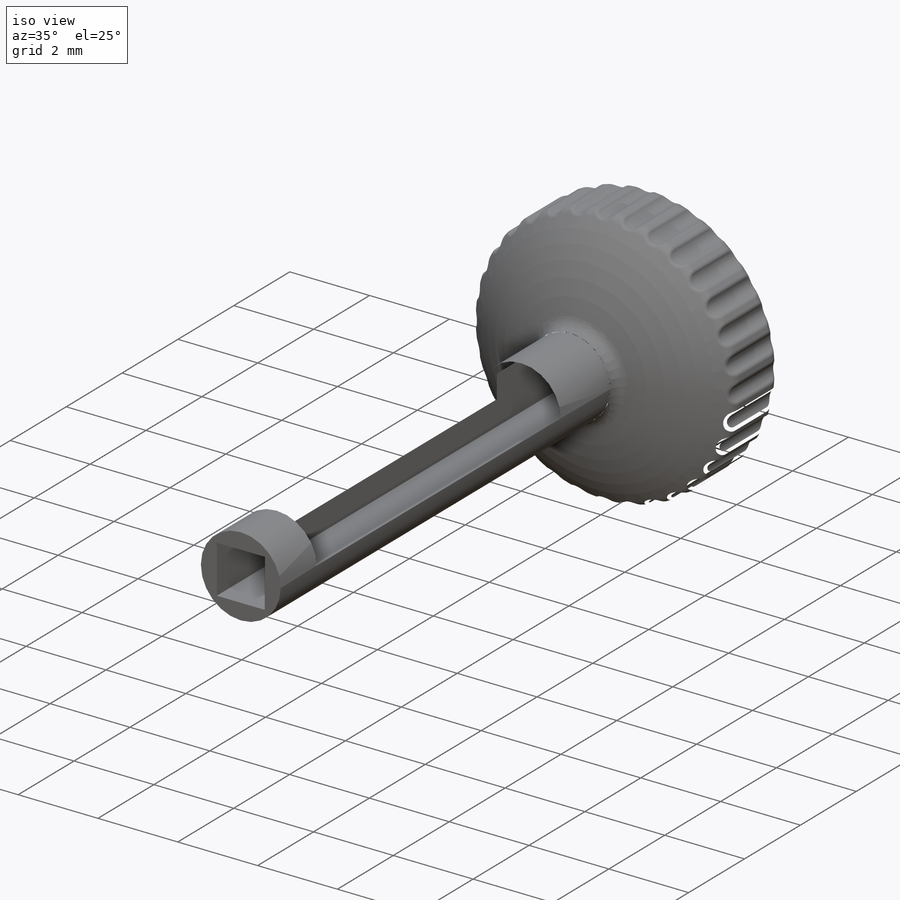
[diagram: iso view]
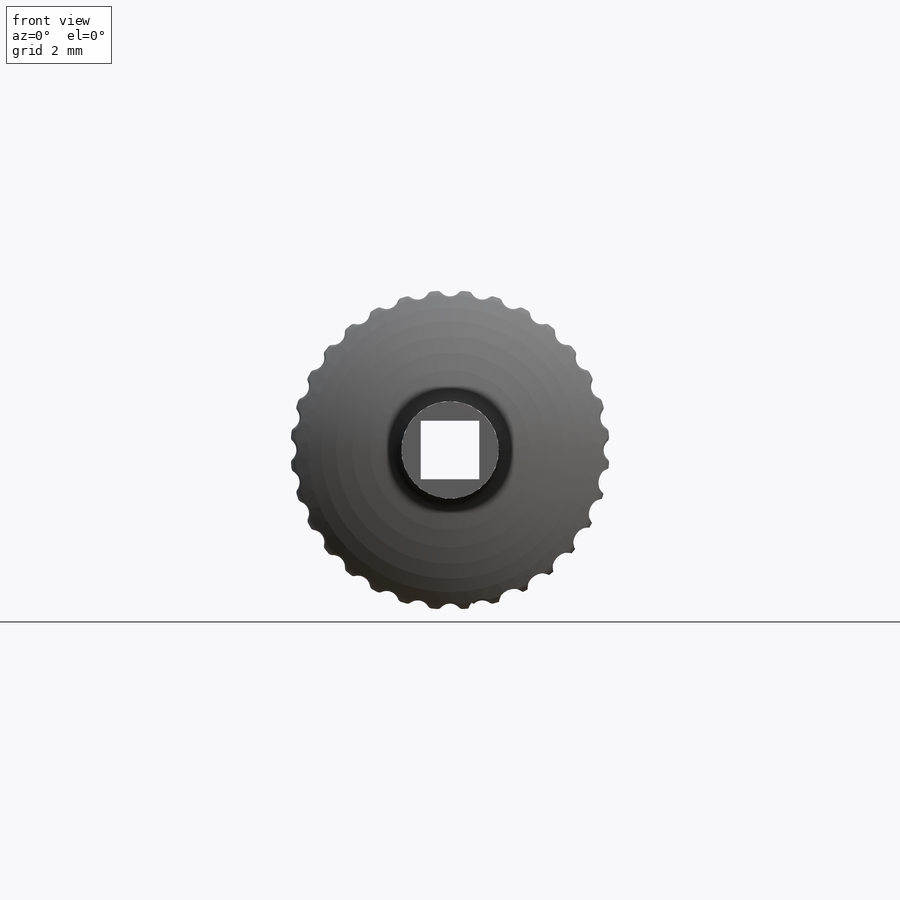
[diagram: front view]
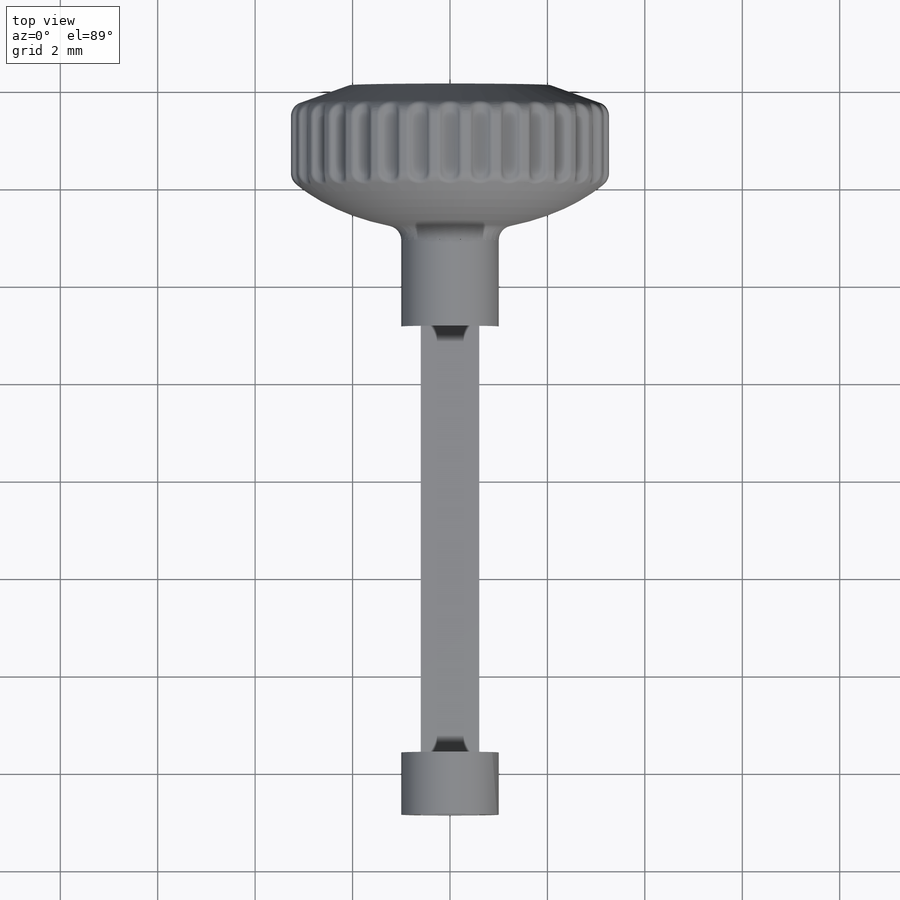
[diagram: top view]
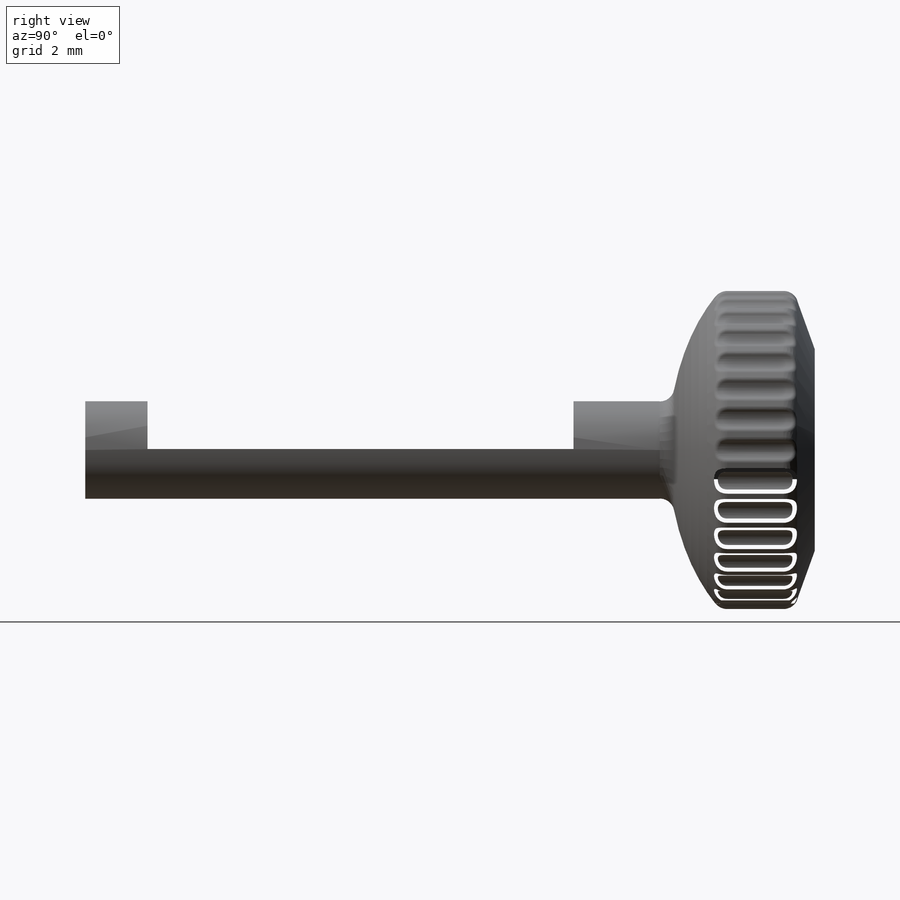
[diagram: right view]
SOLIDWORKS PART (.sldprt)
format: sldprt  version: not decoded by parser v0  size: 1,235,456 bytes
history: native  units: mm
features: sketch x6, fillet x6, cut_extrude x4, material x1, revolve x1, extrude x1 (+11 scaffold rows collapsed)
feature tree (30):
  scaffold x11  (default folders/planes/origin — collapsed)
  material  "Material <not specified>"
  sketch  "Sketch1"  dims[D1=1.5mm D2=2.0mm]
  revolve  "Revolve1"  Angle=360deg
  sketch  "Sketch2"  dims[D1=2.0mm]
  extrude  "Boss-Extrude1"  Depth=15mm
  fillet  "Fillet1"  Radius=0.3mm
  fillet  "Fillet2"  Radius=0.3mm
  fillet  "Fillet3"  Radius=0.3mm
  fillet  "Fillet4"  Radius=0.3mm
  sketch  "Sketch3"  dims[D2=0.5mm D1=32.0]
  cut_extrude  "Cut-Extrude1"  Depth=10mm
  fillet  "Fillet5"  Radius=0.1mm
  sketch  "Sketch4"  dims[c1.D1=1.5mm c1.D2=2.5mm c1.D3=~3.89587mm c2.D2=1.2mm c2.D1=1.2mm c2.D3=~0.66967mm]
  cut_extrude  "Cut-Extrude4"  [1 undecoded]
  sketch  "Sketch5"
  cut_extrude  "Cut-Extrude5"  Depth=1.5mm
  sketch  "Sketch6"  dims[D1=4.0mm]
  cut_extrude  "Cut-Extrude6"  Depth=0.2mm
  fillet  "Fillet6"  Radius=0.05mm
decode coverage: 16 of 18 modeling features carry decoded parameters
note: ~ marks probable driven/reference dimensions
note: 1 parameter value undecoded
note: suppression state not decoded; provenance and decode notes live in map.json
